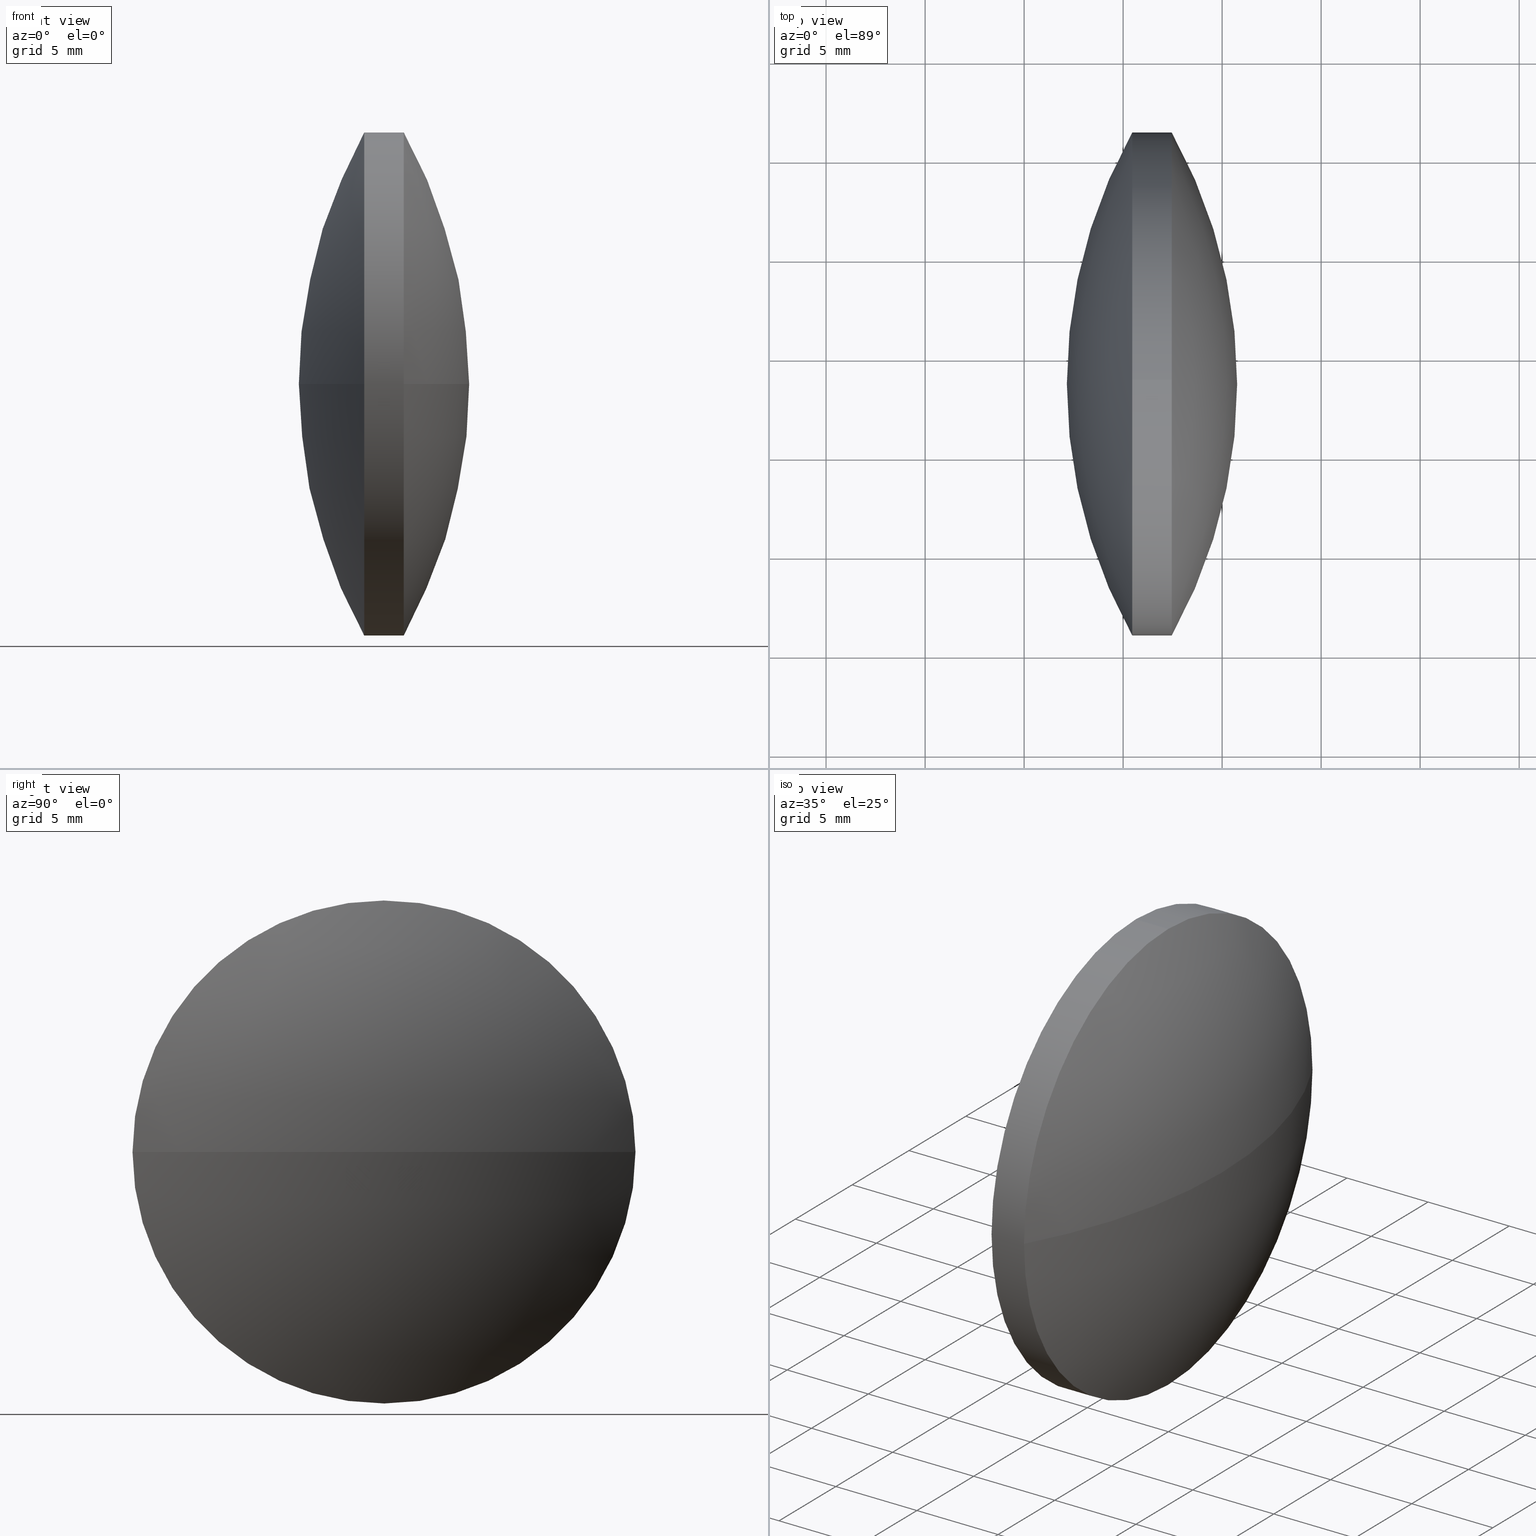
[diagram: canonical four-view strip — front | top / right | iso, engineering-drawing reading convention]
A machine part, canonical four-view strip (front | top / right | iso — engineering-drawing reading convention). The complete STEP part file that produces these views, byte-faithful:
ISO-10303-21;
HEADER;
FILE_DESCRIPTION (( 'STEP AP203' ),
    '1' );
FILE_NAME ('110098.STEP',
    '2019-07-08T06:29:30',
    ( '' ),
    ( '' ),
    'SwSTEP 2.0',
    'SolidWorks 2016',
    '' );
FILE_SCHEMA (( 'CONFIG_CONTROL_DESIGN' ));
ENDSEC;

DATA;
#1 = ORIENTED_EDGE ( 'NONE', *, *, #237, .F. ) ;
#2 = APPROVAL_ROLE ( '' ) ;
#3 = PERSON_AND_ORGANIZATION ( #66, #217 ) ;
#4 = SECURITY_CLASSIFICATION_LEVEL ( 'unclassified' ) ;
#5 = AXIS2_PLACEMENT_3D ( 'NONE', #185, #274, #8 ) ;
#6 = ADVANCED_FACE ( 'NONE', ( #141 ), #190, .T. ) ;
#7 = APPROVAL_PERSON_ORGANIZATION ( #289, #42, #344 ) ;
#8 = DIRECTION ( 'NONE',  ( 0.0000000000000000000, -1.000000000000000000, 0.0000000000000000000 ) ) ;
#9 = ORIENTED_EDGE ( 'NONE', *, *, #44, .F. ) ;
#10 = CC_DESIGN_APPROVAL ( #318, ( #188 ) ) ;
#11 = PERSON_AND_ORGANIZATION ( #66, #217 ) ;
#12 = AXIS2_PLACEMENT_3D ( 'NONE', #189, #221, #245 ) ;
#13 = DATE_AND_TIME ( #187, #105 ) ;
#14 = PRODUCT_DEFINITION_FORMATION_WITH_SPECIFIED_SOURCE ( '�κ�', '', #225, .NOT_KNOWN. ) ;
#15 = ORIENTED_EDGE ( 'NONE', *, *, #252, .F. ) ;
#16 = CARTESIAN_POINT ( 'NONE',  ( 87.45786520323396500, 48.61611302318478100, 0.0000000000000000000 ) ) ;
#17 = AXIS2_PLACEMENT_3D ( 'NONE', #58, #242, #326 ) ;
#18 = CARTESIAN_POINT ( 'NONE',  ( 82.15833663180539800, 48.61611302318477400, 0.0000000000000000000 ) ) ;
#19 = DIRECTION ( 'NONE',  ( -1.000000000000000000, 0.0000000000000000000, 0.0000000000000000000 ) ) ;
#20 = CALENDAR_DATE ( 2019, 8, 7 ) ;
#21 = EDGE_CURVE ( 'NONE', #179, #276, #333, .T. ) ;
#22 = SECURITY_CLASSIFICATION_LEVEL ( 'unclassified' ) ;
#23 = ORIENTED_EDGE ( 'NONE', *, *, #220, .T. ) ;
#24 = PERSON_AND_ORGANIZATION_ROLE ( 'classification_officer' ) ;
#25 = CALENDAR_DATE ( 2019, 8, 7 ) ;
#26 = APPROVAL ( #55, 'δָ��' ) ;
#27 = PERSON_AND_ORGANIZATION_ROLE ( 'design_owner' ) ;
#28 = APPROVAL_STATUS ( 'not_yet_approved' ) ;
#29 = COORDINATED_UNIVERSAL_TIME_OFFSET ( 8, 0, .AHEAD. ) ;
#30 = AXIS2_PLACEMENT_3D ( 'NONE', #99, #98, #74 ) ;
#31 = ORIENTED_EDGE ( 'NONE', *, *, #261, .F. ) ;
#32 = CC_DESIGN_PERSON_AND_ORGANIZATION_ASSIGNMENT ( #153, #205, ( #129 ) ) ;
#33 = DIRECTION ( 'NONE',  ( -1.000000000000000000, -0.0000000000000000000, -0.0000000000000000000 ) ) ;
#34 = PERSON_AND_ORGANIZATION ( #66, #217 ) ;
#35 = DIRECTION ( 'NONE',  ( 0.0000000000000000000, 1.000000000000000000, 0.0000000000000000000 ) ) ;
#36 = CIRCLE ( 'NONE', #137, 12.69999999999999600 ) ;
#37 = LOCAL_TIME ( 14, 29, 30.00000000000000000, #29 ) ;
#38 = AXIS2_PLACEMENT_3D ( 'NONE', #241, #219, #35 ) ;
#39 = LOCAL_TIME ( 14, 29, 30.00000000000000000, #198 ) ;
#40 = UNCERTAINTY_MEASURE_WITH_UNIT (LENGTH_MEASURE( 1.000000000000000100E-005 ), #317, 'distance_accuracy_value', 'NONE');
#41 = CIRCLE ( 'NONE', #248, 12.69999999999999600 ) ;
#42 = APPROVAL ( #321, 'δָ��' ) ;
#43 = ORIENTED_EDGE ( 'NONE', *, *, #161, .T. ) ;
#44 = EDGE_CURVE ( 'NONE', #195, #315, #214, .T. ) ;
#45 = DIRECTION ( 'NONE',  ( 0.0000000000000000000, 0.0000000000000000000, 1.000000000000000000 ) ) ;
#46 = DIRECTION ( 'NONE',  ( -0.0000000000000000000, 0.0000000000000000000, -1.000000000000000000 ) ) ;
#47 = CARTESIAN_POINT ( 'NONE',  ( 85.45852234609111500, 48.61611302318478100, 0.0000000000000000000 ) ) ;
#48 = AXIS2_PLACEMENT_3D ( 'NONE', #172, #310, #19 ) ;
#49 = ORIENTED_EDGE ( 'NONE', *, *, #183, .T. ) ;
#50 = APPROVAL_ROLE ( '' ) ;
#51 = LOCAL_TIME ( 14, 29, 30.00000000000000000, #149 ) ;
#52 = CC_DESIGN_APPROVAL ( #162, ( #129 ) ) ;
#53 = PERSON_AND_ORGANIZATION_ROLE ( 'creator' ) ;
#54 = ORIENTED_EDGE ( 'NONE', *, *, #220, .F. ) ;
#55 = APPROVAL_STATUS ( 'not_yet_approved' ) ;
#56 = EDGE_CURVE ( 'NONE', #61, #280, #119, .T. ) ;
#57 = APPROVAL ( #152, 'δָ��' ) ;
#58 = CARTESIAN_POINT ( 'NONE',  ( 87.45786520323396500, 48.61611302318478100, 0.0000000000000000000 ) ) ;
#59 = CIRCLE ( 'NONE', #67, 12.69999999999999600 ) ;
#60 = PERSON_AND_ORGANIZATION ( #66, #217 ) ;
#61 = VERTEX_POINT ( 'NONE', #297 ) ;
#62 = CC_DESIGN_PERSON_AND_ORGANIZATION_ASSIGNMENT ( #228, #240, ( #14 ) ) ;
#63 = APPROVAL_PERSON_ORGANIZATION ( #131, #318, #2 ) ;
#64 = EDGE_CURVE ( 'NONE', #113, #195, #59, .T. ) ;
#65 = ORIENTED_EDGE ( 'NONE', *, *, #183, .F. ) ;
#66 = PERSON ( 'δָ��', 'δָ��', 'δָ��', ('δָ��'), ('δָ��'), ('δָ��') ) ;
#67 = AXIS2_PLACEMENT_3D ( 'NONE', #328, #33, #302 ) ;
#68 = LOCAL_TIME ( 14, 29, 30.00000000000000000, #133 ) ;
#69 = VECTOR ( 'NONE', #288, 1000.000000000000000 ) ;
#70 = CC_DESIGN_DATE_AND_TIME_ASSIGNMENT ( #166, #236, ( #188 ) ) ;
#71 = ORIENTED_EDGE ( 'NONE', *, *, #202, .T. ) ;
#72 = CARTESIAN_POINT ( 'NONE',  ( 85.45852234609111500, 48.61611302318478100, 12.69999999999999600 ) ) ;
#73 = AXIS2_PLACEMENT_3D ( 'NONE', #203, #168, #337 ) ;
#74 = DIRECTION ( 'NONE',  ( 0.0000000000000000000, 0.0000000000000000000, 1.000000000000000000 ) ) ;
#75 = DIRECTION ( 'NONE',  ( 0.0000000000000000000, -1.000000000000000000, 0.0000000000000000000 ) ) ;
#76 = PERSON_AND_ORGANIZATION ( #66, #217 ) ;
#77 = PERSON_AND_ORGANIZATION ( #66, #217 ) ;
#78 =( NAMED_UNIT ( * ) SI_UNIT ( $, .STERADIAN. ) SOLID_ANGLE_UNIT ( ) );
#79 = EDGE_LOOP ( 'NONE', ( #110, #23, #234, #249, #65, #299 ) ) ;
#80 = CARTESIAN_POINT ( 'NONE',  ( 0.0000000000000000000, 0.0000000000000000000, 0.0000000000000000000 ) ) ;
#81 = APPROVAL_PERSON_ORGANIZATION ( #11, #162, #233 ) ;
#82 = APPROVAL ( #267, 'δָ��' ) ;
#83 = MECHANICAL_CONTEXT ( 'NONE', #128, 'mechanical' ) ;
#84 = CARTESIAN_POINT ( 'NONE',  ( 85.45852234609111500, 48.61611302318478100, 0.0000000000000000000 ) ) ;
#85 = APPROVAL_PERSON_ORGANIZATION ( #303, #82, #269 ) ;
#86 = AXIS2_PLACEMENT_3D ( 'NONE', #16, #120, #144 ) ;
#87 = EDGE_LOOP ( 'NONE', ( #15, #43, #324, #338 ) ) ;
#88 = CC_DESIGN_SECURITY_CLASSIFICATION ( #129, ( #14 ) ) ;
#89 = DATE_AND_TIME ( #273, #68 ) ;
#90 = CARTESIAN_POINT ( 'NONE',  ( 85.45852234609111500, 61.31611302318477600, 0.0000000000000000000 ) ) ;
#91 =( GEOMETRIC_REPRESENTATION_CONTEXT ( 3 ) GLOBAL_UNCERTAINTY_ASSIGNED_CONTEXT ( ( #40 ) ) GLOBAL_UNIT_ASSIGNED_CONTEXT ( ( #317, #209, #78 ) ) REPRESENTATION_CONTEXT ( 'NONE', 'WORKASPACE' ) );
#92 = COORDINATED_UNIVERSAL_TIME_OFFSET ( 8, 0, .AHEAD. ) ;
#93 = ORIENTED_EDGE ( 'NONE', *, *, #223, .F. ) ;
#94 = CALENDAR_DATE ( 2019, 8, 7 ) ;
#95 = DIRECTION ( 'NONE',  ( -1.000000000000000000, -0.0000000000000000000, -0.0000000000000000000 ) ) ;
#96 = CC_DESIGN_PERSON_AND_ORGANIZATION_ASSIGNMENT ( #175, #27, ( #225 ) ) ;
#97 = LINE ( 'NONE', #255, #69 ) ;
#98 = DIRECTION ( 'NONE',  ( -1.000000000000000000, -0.0000000000000000000, -0.0000000000000000000 ) ) ;
#99 = CARTESIAN_POINT ( 'NONE',  ( 85.45852234609111500, 48.61611302318478100, 0.0000000000000000000 ) ) ;
#100 = CARTESIAN_POINT ( 'NONE',  ( 64.67145448698481400, 48.61611302318480200, 0.0000000000000000000 ) ) ;
#101 = AXIS2_PLACEMENT_3D ( 'NONE', #121, #95, #123 ) ;
#102 = DATE_TIME_ROLE ( 'creation_date' ) ;
#103 = CC_DESIGN_APPROVAL ( #42, ( #14 ) ) ;
#104 = APPLICATION_PROTOCOL_DEFINITION ( 'international standard', 'config_control_design', 1994, #128 ) ;
#105 = LOCAL_TIME ( 14, 29, 30.00000000000000000, #298 ) ;
#106 = APPLICATION_PROTOCOL_DEFINITION ( 'international standard', 'config_control_design', 1994, #178 ) ;
#107 = MECHANICAL_CONTEXT ( 'NONE', #178, 'mechanical' ) ;
#108 = SPHERICAL_SURFACE ( 'NONE', #122, 26.08659643053482200 ) ;
#109 = DIRECTION ( 'NONE',  ( 0.0000000000000000000, 0.0000000000000000000, 1.000000000000000000 ) ) ;
#110 = ORIENTED_EDGE ( 'NONE', *, *, #237, .T. ) ;
#111 = DIRECTION ( 'NONE',  ( -1.000000000000000000, -0.0000000000000000000, -0.0000000000000000000 ) ) ;
#112 = APPROVAL_PERSON_ORGANIZATION ( #268, #26, #50 ) ;
#113 = VERTEX_POINT ( 'NONE', #90 ) ;
#114 = CC_DESIGN_PERSON_AND_ORGANIZATION_ASSIGNMENT ( #76, #155, ( #14 ) ) ;
#115 = CIRCLE ( 'NONE', #12, 26.08659643053481900 ) ;
#116 = AXIS2_PLACEMENT_3D ( 'NONE', #335, #45, #291 ) ;
#117 = PERSON_AND_ORGANIZATION ( #66, #217 ) ;
#118 = PRODUCT_RELATED_PRODUCT_CATEGORY ( 'detail', '', ( #225 ) ) ;
#119 = CIRCLE ( 'NONE', #17, 12.69999999999999600 ) ;
#120 = DIRECTION ( 'NONE',  ( -1.000000000000000000, -0.0000000000000000000, -0.0000000000000000000 ) ) ;
#121 = CARTESIAN_POINT ( 'NONE',  ( 79.30540135083715800, 48.61611302318478100, 0.0000000000000000000 ) ) ;
#122 = AXIS2_PLACEMENT_3D ( 'NONE', #284, #46, #313 ) ;
#123 = DIRECTION ( 'NONE',  ( 0.0000000000000000000, 0.0000000000000000000, 1.000000000000000000 ) ) ;
#124 = VERTEX_POINT ( 'NONE', #213 ) ;
#125 = SHAPE_DEFINITION_REPRESENTATION ( #263, #247 ) ;
#126 = DIRECTION ( 'NONE',  ( 0.0000000000000000000, 0.0000000000000000000, 1.000000000000000000 ) ) ;
#127 = CIRCLE ( 'NONE', #171, 26.08659643053486100 ) ;
#128 = APPLICATION_CONTEXT ( 'configuration controlled 3d designs of mechanical parts and assemblies' ) ;
#129 = SECURITY_CLASSIFICATION ( '', '', #22 ) ;
#130 = PERSON_AND_ORGANIZATION_ROLE ( 'design_supplier' ) ;
#131 = PERSON_AND_ORGANIZATION ( #66, #217 ) ;
#132 = EDGE_LOOP ( 'NONE', ( #218, #282, #71, #136 ) ) ;
#133 = COORDINATED_UNIVERSAL_TIME_OFFSET ( 8, 0, .AHEAD. ) ;
#134 = FACE_OUTER_BOUND ( 'NONE', #292, .T. ) ;
#135 = PRODUCT_RELATED_PRODUCT_CATEGORY ( 'detail', '', ( #164 ) ) ;
#136 = ORIENTED_EDGE ( 'NONE', *, *, #223, .T. ) ;
#137 = AXIS2_PLACEMENT_3D ( 'NONE', #254, #142, #334 ) ;
#138 = DATE_AND_TIME ( #94, #216 ) ;
#139 = ADVANCED_FACE ( 'NONE', ( #258 ), #184, .T. ) ;
#140 = PERSON_AND_ORGANIZATION ( #66, #217 ) ;
#141 = FACE_OUTER_BOUND ( 'NONE', #151, .T. ) ;
#142 = DIRECTION ( 'NONE',  ( -1.000000000000000000, -0.0000000000000000000, -0.0000000000000000000 ) ) ;
#143 = DATE_AND_TIME ( #222, #193 ) ;
#144 = DIRECTION ( 'NONE',  ( 0.0000000000000000000, 0.0000000000000000000, 1.000000000000000000 ) ) ;
#145 = CC_DESIGN_DATE_AND_TIME_ASSIGNMENT ( #89, #181, ( #129 ) ) ;
#146 = CARTESIAN_POINT ( 'NONE',  ( 79.30540135083715800, 48.61611302318478100, 12.69999999999999600 ) ) ;
#147 = EDGE_CURVE ( 'NONE', #315, #271, #115, .T. ) ;
#148 = DIRECTION ( 'NONE',  ( 0.0000000000000000000, 0.0000000000000000000, 1.000000000000000000 ) ) ;
#149 = COORDINATED_UNIVERSAL_TIME_OFFSET ( 8, 0, .AHEAD. ) ;
#150 = APPLICATION_CONTEXT ( 'configuration controlled 3d designs of mechanical parts and assemblies' ) ;
#151 = EDGE_LOOP ( 'NONE', ( #266, #226, #253, #1 ) ) ;
#152 = APPROVAL_STATUS ( 'not_yet_approved' ) ;
#153 = PERSON_AND_ORGANIZATION ( #66, #217 ) ;
#154 = PERSON_AND_ORGANIZATION_ROLE ( 'creator' ) ;
#155 = PERSON_AND_ORGANIZATION_ROLE ( 'design_supplier' ) ;
#156 = AXIS2_PLACEMENT_3D ( 'NONE', #84, #270, #109 ) ;
#157 = CALENDAR_DATE ( 2019, 8, 7 ) ;
#158 = ORIENTED_EDGE ( 'NONE', *, *, #64, .T. ) ;
#159 = CALENDAR_DATE ( 2019, 8, 7 ) ;
#160 = APPROVAL_DATE_TIME ( #13, #26 ) ;
#161 = EDGE_CURVE ( 'NONE', #124, #280, #127, .T. ) ;
#162 = APPROVAL ( #28, 'δָ��' ) ;
#163 = APPROVAL_PERSON_ORGANIZATION ( #77, #57, #212 ) ;
#164 = PRODUCT ( '110098', '110098', '', ( #83 ) ) ;
#165 = LINE ( 'NONE', #146, #246 ) ;
#166 = DATE_AND_TIME ( #20, #51 ) ;
#167 = CC_DESIGN_DATE_AND_TIME_ASSIGNMENT ( #224, #295, ( #265 ) ) ;
#168 = DIRECTION ( 'NONE',  ( -1.000000000000000000, -0.0000000000000000000, -0.0000000000000000000 ) ) ;
#169 = FACE_OUTER_BOUND ( 'NONE', #173, .T. ) ;
#170 = CARTESIAN_POINT ( 'NONE',  ( 87.45786520323396500, 61.31611302318479100, 1.555301434917137400E-015 ) ) ;
#171 = AXIS2_PLACEMENT_3D ( 'NONE', #272, #196, #200 ) ;
#172 = CARTESIAN_POINT ( 'NONE',  ( 64.67145448698481400, 48.61611302318480200, 0.0000000000000000000 ) ) ;
#173 = EDGE_LOOP ( 'NONE', ( #158, #192, #320, #93 ) ) ;
#174 = DIRECTION ( 'NONE',  ( 1.000000000000000000, 0.0000000000000000000, 0.0000000000000000000 ) ) ;
#175 = PERSON_AND_ORGANIZATION ( #66, #217 ) ;
#176 = CARTESIAN_POINT ( 'NONE',  ( 85.45852234609111500, 35.91611302318477800, -1.555301434917138000E-015 ) ) ;
#177 = CIRCLE ( 'NONE', #86, 12.69999999999999600 ) ;
#178 = APPLICATION_CONTEXT ( 'configuration controlled 3d designs of mechanical parts and assemblies' ) ;
#179 = VERTEX_POINT ( 'NONE', #286 ) ;
#180 = CC_DESIGN_PERSON_AND_ORGANIZATION_ASSIGNMENT ( #204, #53, ( #323 ) ) ;
#181 = DATE_TIME_ROLE ( 'classification_date' ) ;
#182 = ADVANCED_FACE ( 'NONE', ( #331 ), #239, .T. ) ;
#183 = EDGE_CURVE ( 'NONE', #61, #207, #165, .T. ) ;
#184 = SPHERICAL_SURFACE ( 'NONE', #38, 26.08659643053482200 ) ;
#185 = CARTESIAN_POINT ( 'NONE',  ( 64.67145448698481400, 48.61611302318480200, 0.0000000000000000000 ) ) ;
#186 = DESIGN_CONTEXT ( 'detailed design', #150, 'design' ) ;
#187 = CALENDAR_DATE ( 2019, 8, 7 ) ;
#188 = SECURITY_CLASSIFICATION ( '', '', #4 ) ;
#189 = CARTESIAN_POINT ( 'NONE',  ( 108.2449330623402200, 48.61611302318477400, 0.0000000000000000000 ) ) ;
#190 = SPHERICAL_SURFACE ( 'NONE', #5, 26.08659643053486100 ) ;
#191 = ADVANCED_FACE ( 'NONE', ( #169 ), #108, .T. ) ;
#192 = ORIENTED_EDGE ( 'NONE', *, *, #44, .T. ) ;
#193 = LOCAL_TIME ( 14, 29, 30.00000000000000000, #294 ) ;
#194 = CIRCLE ( 'NONE', #48, 26.08659643053486100 ) ;
#195 = VERTEX_POINT ( 'NONE', #197 ) ;
#196 = DIRECTION ( 'NONE',  ( 0.0000000000000000000, -1.224646799147353200E-016, 1.000000000000000000 ) ) ;
#197 = CARTESIAN_POINT ( 'NONE',  ( 85.45852234609111500, 48.61611302318478100, -12.69999999999999600 ) ) ;
#198 = COORDINATED_UNIVERSAL_TIME_OFFSET ( 8, 0, .AHEAD. ) ;
#199 = CC_DESIGN_PERSON_AND_ORGANIZATION_ASSIGNMENT ( #34, #238, ( #265 ) ) ;
#200 = DIRECTION ( 'NONE',  ( 0.0000000000000000000, -1.000000000000000000, -1.224646799147353200E-016 ) ) ;
#201 = ORIENTED_EDGE ( 'NONE', *, *, #21, .T. ) ;
#202 = EDGE_CURVE ( 'NONE', #207, #113, #311, .T. ) ;
#203 = CARTESIAN_POINT ( 'NONE',  ( 79.30540135083715800, 48.61611302318478100, 0.0000000000000000000 ) ) ;
#204 = PERSON_AND_ORGANIZATION ( #66, #217 ) ;
#205 = PERSON_AND_ORGANIZATION_ROLE ( 'classification_officer' ) ;
#206 = CYLINDRICAL_SURFACE ( 'NONE', #73, 12.69999999999999600 ) ;
#207 = VERTEX_POINT ( 'NONE', #72 ) ;
#208 = CC_DESIGN_APPROVAL ( #82, ( #323 ) ) ;
#209 =( NAMED_UNIT ( * ) PLANE_ANGLE_UNIT ( ) SI_UNIT ( $, .RADIAN. ) );
#210 = APPLICATION_PROTOCOL_DEFINITION ( 'international standard', 'config_control_design', 1994, #264 ) ;
#211 = DATE_AND_TIME ( #25, #281 ) ;
#212 = APPROVAL_ROLE ( '' ) ;
#213 = CARTESIAN_POINT ( 'NONE',  ( 90.75805091751968200, 48.61611302318480200, 0.0000000000000000000 ) ) ;
#214 = CIRCLE ( 'NONE', #156, 12.69999999999999600 ) ;
#215 = CC_DESIGN_PERSON_AND_ORGANIZATION_ASSIGNMENT ( #140, #293, ( #164 ) ) ;
#216 = LOCAL_TIME ( 14, 29, 30.00000000000000000, #332 ) ;
#217 = ORGANIZATION ( 'δָ��', 'δָ��', '' ) ;
#218 = ORIENTED_EDGE ( 'NONE', *, *, #147, .F. ) ;
#219 = DIRECTION ( 'NONE',  ( -0.0000000000000000000, 0.0000000000000000000, -1.000000000000000000 ) ) ;
#220 = EDGE_CURVE ( 'NONE', #179, #195, #97, .T. ) ;
#221 = DIRECTION ( 'NONE',  ( 0.0000000000000000000, 1.224646799147353200E-016, -1.000000000000000000 ) ) ;
#222 = CALENDAR_DATE ( 2019, 8, 7 ) ;
#223 = EDGE_CURVE ( 'NONE', #113, #271, #345, .T. ) ;
#224 = DATE_AND_TIME ( #235, #39 ) ;
#225 = PRODUCT ( '110098', '110098', '', ( #107 ) ) ;
#226 = ORIENTED_EDGE ( 'NONE', *, *, #252, .T. ) ;
#227 = CC_DESIGN_APPROVAL ( #26, ( #265 ) ) ;
#228 = PERSON_AND_ORGANIZATION ( #66, #217 ) ;
#229 = CC_DESIGN_APPROVAL ( #57, ( #296 ) ) ;
#230 = DIRECTION ( 'NONE',  ( -1.000000000000000000, -0.0000000000000000000, -0.0000000000000000000 ) ) ;
#231 = COORDINATED_UNIVERSAL_TIME_OFFSET ( 8, 0, .AHEAD. ) ;
#232 = PRODUCT_DEFINITION_SHAPE ( 'NONE', 'NONE',  #296 ) ;
#233 = APPROVAL_ROLE ( '' ) ;
#234 = ORIENTED_EDGE ( 'NONE', *, *, #64, .F. ) ;
#235 = CALENDAR_DATE ( 2019, 8, 7 ) ;
#236 = DATE_TIME_ROLE ( 'classification_date' ) ;
#237 = EDGE_CURVE ( 'NONE', #280, #179, #36, .T. ) ;
#238 = PERSON_AND_ORGANIZATION_ROLE ( 'creator' ) ;
#239 = CYLINDRICAL_SURFACE ( 'NONE', #101, 12.69999999999999600 ) ;
#240 = PERSON_AND_ORGANIZATION_ROLE ( 'creator' ) ;
#241 = CARTESIAN_POINT ( 'NONE',  ( 108.2449330623402200, 48.61611302318477400, 0.0000000000000000000 ) ) ;
#242 = DIRECTION ( 'NONE',  ( -1.000000000000000000, -0.0000000000000000000, -0.0000000000000000000 ) ) ;
#243 = LOCAL_TIME ( 14, 29, 30.00000000000000000, #231 ) ;
#244 = CC_DESIGN_PERSON_AND_ORGANIZATION_ASSIGNMENT ( #60, #24, ( #188 ) ) ;
#245 = DIRECTION ( 'NONE',  ( 0.0000000000000000000, 1.000000000000000000, 1.224646799147353500E-016 ) ) ;
#246 = VECTOR ( 'NONE', #290, 1000.000000000000000 ) ;
#247 = ADVANCED_BREP_SHAPE_REPRESENTATION ( '110098', ( #305, #116 ), #91 ) ;
#248 = AXIS2_PLACEMENT_3D ( 'NONE', #47, #230, #259 ) ;
#249 = ORIENTED_EDGE ( 'NONE', *, *, #202, .F. ) ;
#250 = ADVANCED_FACE ( 'NONE', ( #134 ), #206, .T. ) ;
#251 = APPROVAL_DATE_TIME ( #278, #318 ) ;
#252 = EDGE_CURVE ( 'NONE', #124, #276, #194, .T. ) ;
#253 = ORIENTED_EDGE ( 'NONE', *, *, #21, .F. ) ;
#254 = CARTESIAN_POINT ( 'NONE',  ( 87.45786520323396500, 48.61611302318478100, 0.0000000000000000000 ) ) ;
#255 = CARTESIAN_POINT ( 'NONE',  ( 79.30540135083715800, 48.61611302318478100, -12.69999999999999600 ) ) ;
#256 = DIRECTION ( 'NONE',  ( 1.000000000000000000, 0.0000000000000000000, 0.0000000000000000000 ) ) ;
#257 = CARTESIAN_POINT ( 'NONE',  ( 87.45786520323396500, 35.91611302318479200, 0.0000000000000000000 ) ) ;
#258 = FACE_OUTER_BOUND ( 'NONE', #132, .T. ) ;
#259 = DIRECTION ( 'NONE',  ( 0.0000000000000000000, 0.0000000000000000000, 1.000000000000000000 ) ) ;
#260 = DATE_AND_TIME ( #159, #37 ) ;
#261 = EDGE_CURVE ( 'NONE', #315, #207, #41, .T. ) ;
#262 = DATE_AND_TIME ( #157, #243 ) ;
#263 = PRODUCT_DEFINITION_SHAPE ( 'NONE', 'NONE',  #265 ) ;
#264 = APPLICATION_CONTEXT ( 'configuration controlled 3d designs of mechanical parts and assemblies' ) ;
#265 = PRODUCT_DEFINITION ( 'δ֪', '', #14, #341 ) ;
#266 = ORIENTED_EDGE ( 'NONE', *, *, #161, .F. ) ;
#267 = APPROVAL_STATUS ( 'not_yet_approved' ) ;
#268 = PERSON_AND_ORGANIZATION ( #66, #217 ) ;
#269 = APPROVAL_ROLE ( '' ) ;
#270 = DIRECTION ( 'NONE',  ( -1.000000000000000000, -0.0000000000000000000, -0.0000000000000000000 ) ) ;
#271 = VERTEX_POINT ( 'NONE', #18 ) ;
#272 = CARTESIAN_POINT ( 'NONE',  ( 64.67145448698481400, 48.61611302318480200, 0.0000000000000000000 ) ) ;
#273 = CALENDAR_DATE ( 2019, 8, 7 ) ;
#274 = DIRECTION ( 'NONE',  ( 0.0000000000000000000, 0.0000000000000000000, 1.000000000000000000 ) ) ;
#275 = SPHERICAL_SURFACE ( 'NONE', #339, 26.08659643053486100 ) ;
#276 = VERTEX_POINT ( 'NONE', #257 ) ;
#277 = EDGE_CURVE ( 'NONE', #276, #61, #177, .T. ) ;
#278 = DATE_AND_TIME ( #336, #327 ) ;
#279 = AXIS2_PLACEMENT_3D ( 'NONE', #80, #126, #174 ) ;
#280 = VERTEX_POINT ( 'NONE', #170 ) ;
#281 = LOCAL_TIME ( 14, 29, 30.00000000000000000, #92 ) ;
#282 = ORIENTED_EDGE ( 'NONE', *, *, #261, .T. ) ;
#283 = CC_DESIGN_SECURITY_CLASSIFICATION ( #188, ( #323 ) ) ;
#284 = CARTESIAN_POINT ( 'NONE',  ( 108.2449330623402200, 48.61611302318477400, 0.0000000000000000000 ) ) ;
#285 = APPROVAL_DATE_TIME ( #143, #162 ) ;
#286 = CARTESIAN_POINT ( 'NONE',  ( 87.45786520323396500, 48.61611302318478100, -12.69999999999999600 ) ) ;
#287 = CC_DESIGN_PERSON_AND_ORGANIZATION_ASSIGNMENT ( #3, #154, ( #296 ) ) ;
#288 = DIRECTION ( 'NONE',  ( -1.000000000000000000, -0.0000000000000000000, -0.0000000000000000000 ) ) ;
#289 = PERSON_AND_ORGANIZATION ( #66, #217 ) ;
#290 = DIRECTION ( 'NONE',  ( -1.000000000000000000, -0.0000000000000000000, -0.0000000000000000000 ) ) ;
#291 = DIRECTION ( 'NONE',  ( 1.000000000000000000, 0.0000000000000000000, 0.0000000000000000000 ) ) ;
#292 = EDGE_LOOP ( 'NONE', ( #54, #201, #307, #49, #31, #9 ) ) ;
#293 = PERSON_AND_ORGANIZATION_ROLE ( 'design_owner' ) ;
#294 = COORDINATED_UNIVERSAL_TIME_OFFSET ( 8, 0, .AHEAD. ) ;
#295 = DATE_TIME_ROLE ( 'creation_date' ) ;
#296 = PRODUCT_DEFINITION ( 'δ֪', '', #323, #186 ) ;
#297 = CARTESIAN_POINT ( 'NONE',  ( 87.45786520323396500, 48.61611302318478100, 12.69999999999999600 ) ) ;
#298 = COORDINATED_UNIVERSAL_TIME_OFFSET ( 8, 0, .AHEAD. ) ;
#299 = ORIENTED_EDGE ( 'NONE', *, *, #56, .T. ) ;
#300 = DIRECTION ( 'NONE',  ( 0.0000000000000000000, 0.0000000000000000000, 1.000000000000000000 ) ) ;
#301 = ADVANCED_FACE ( 'NONE', ( #309 ), #275, .T. ) ;
#302 = DIRECTION ( 'NONE',  ( 0.0000000000000000000, 0.0000000000000000000, 1.000000000000000000 ) ) ;
#303 = PERSON_AND_ORGANIZATION ( #66, #217 ) ;
#304 = CC_DESIGN_PERSON_AND_ORGANIZATION_ASSIGNMENT ( #117, #130, ( #323 ) ) ;
#305 = MANIFOLD_SOLID_BREP ( '��ת1', #329 ) ;
#306 = CC_DESIGN_DATE_AND_TIME_ASSIGNMENT ( #262, #102, ( #296 ) ) ;
#307 = ORIENTED_EDGE ( 'NONE', *, *, #277, .T. ) ;
#308 = APPROVAL_DATE_TIME ( #211, #82 ) ;
#309 = FACE_OUTER_BOUND ( 'NONE', #87, .T. ) ;
#310 = DIRECTION ( 'NONE',  ( 0.0000000000000000000, 0.0000000000000000000, -1.000000000000000000 ) ) ;
#311 = CIRCLE ( 'NONE', #30, 12.69999999999999600 ) ;
#312 = AXIS2_PLACEMENT_3D ( 'NONE', #314, #340, #256 ) ;
#313 = DIRECTION ( 'NONE',  ( 0.0000000000000000000, 1.000000000000000000, 0.0000000000000000000 ) ) ;
#314 = CARTESIAN_POINT ( 'NONE',  ( 108.2449330623402200, 48.61611302318477400, 0.0000000000000000000 ) ) ;
#315 = VERTEX_POINT ( 'NONE', #176 ) ;
#316 = APPROVAL_DATE_TIME ( #138, #42 ) ;
#317 =( LENGTH_UNIT ( ) NAMED_UNIT ( * ) SI_UNIT ( .MILLI., .METRE. ) );
#318 = APPROVAL ( #342, 'δָ��' ) ;
#319 = APPLICATION_PROTOCOL_DEFINITION ( 'international standard', 'config_control_design', 1994, #150 ) ;
#320 = ORIENTED_EDGE ( 'NONE', *, *, #147, .T. ) ;
#321 = APPROVAL_STATUS ( 'not_yet_approved' ) ;
#322 = CARTESIAN_POINT ( 'NONE',  ( 87.45786520323396500, 48.61611302318478100, 0.0000000000000000000 ) ) ;
#323 = PRODUCT_DEFINITION_FORMATION_WITH_SPECIFIED_SOURCE ( '�κ�', '', #164, .NOT_KNOWN. ) ;
#324 = ORIENTED_EDGE ( 'NONE', *, *, #56, .F. ) ;
#325 = APPROVAL_DATE_TIME ( #260, #57 ) ;
#326 = DIRECTION ( 'NONE',  ( 0.0000000000000000000, 0.0000000000000000000, 1.000000000000000000 ) ) ;
#327 = LOCAL_TIME ( 14, 29, 30.00000000000000000, #343 ) ;
#328 = CARTESIAN_POINT ( 'NONE',  ( 85.45852234609111500, 48.61611302318478100, 0.0000000000000000000 ) ) ;
#329 = CLOSED_SHELL ( 'NONE', ( #182, #301, #191, #139, #6, #250 ) ) ;
#330 = AXIS2_PLACEMENT_3D ( 'NONE', #322, #111, #300 ) ;
#331 = FACE_OUTER_BOUND ( 'NONE', #79, .T. ) ;
#332 = COORDINATED_UNIVERSAL_TIME_OFFSET ( 8, 0, .AHEAD. ) ;
#333 = CIRCLE ( 'NONE', #330, 12.69999999999999600 ) ;
#334 = DIRECTION ( 'NONE',  ( 0.0000000000000000000, 0.0000000000000000000, 1.000000000000000000 ) ) ;
#335 = CARTESIAN_POINT ( 'NONE',  ( 0.0000000000000000000, 0.0000000000000000000, 0.0000000000000000000 ) ) ;
#336 = CALENDAR_DATE ( 2019, 8, 7 ) ;
#337 = DIRECTION ( 'NONE',  ( 0.0000000000000000000, 0.0000000000000000000, 1.000000000000000000 ) ) ;
#338 = ORIENTED_EDGE ( 'NONE', *, *, #277, .F. ) ;
#339 = AXIS2_PLACEMENT_3D ( 'NONE', #100, #148, #75 ) ;
#340 = DIRECTION ( 'NONE',  ( -0.0000000000000000000, 0.0000000000000000000, 1.000000000000000000 ) ) ;
#341 = DESIGN_CONTEXT ( 'detailed design', #264, 'design' ) ;
#342 = APPROVAL_STATUS ( 'not_yet_approved' ) ;
#343 = COORDINATED_UNIVERSAL_TIME_OFFSET ( 8, 0, .AHEAD. ) ;
#344 = APPROVAL_ROLE ( '' ) ;
#345 = CIRCLE ( 'NONE', #312, 26.08659643053483300 ) ;
ENDSEC;
END-ISO-10303-21;
